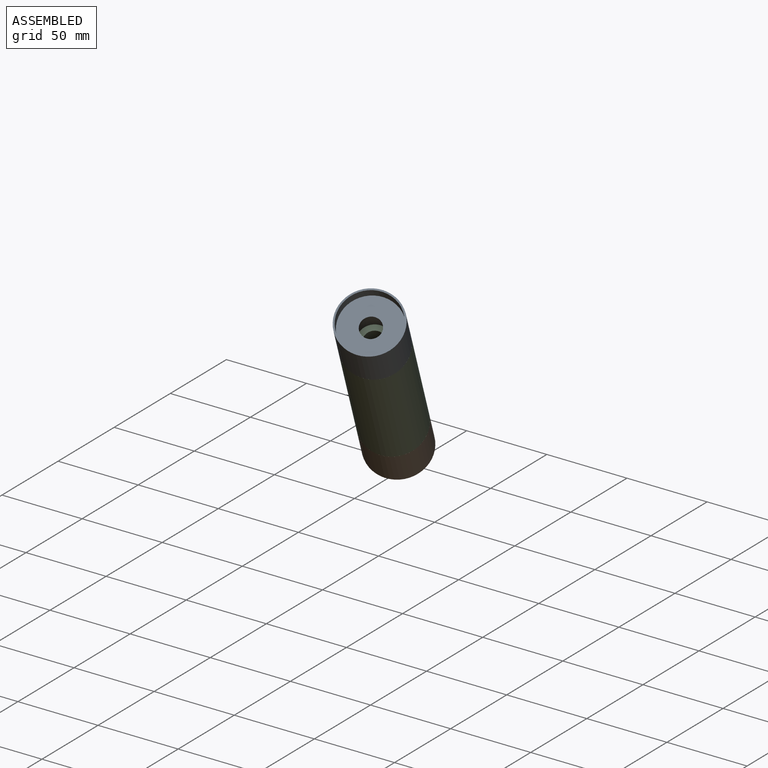
[diagram: assembled view]
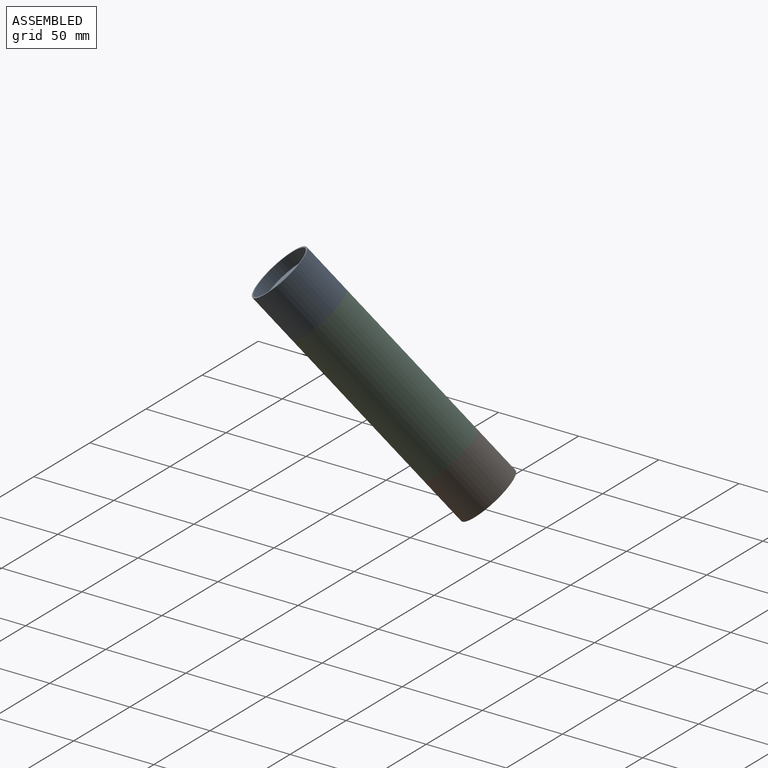
[diagram: assembled view, second angle]
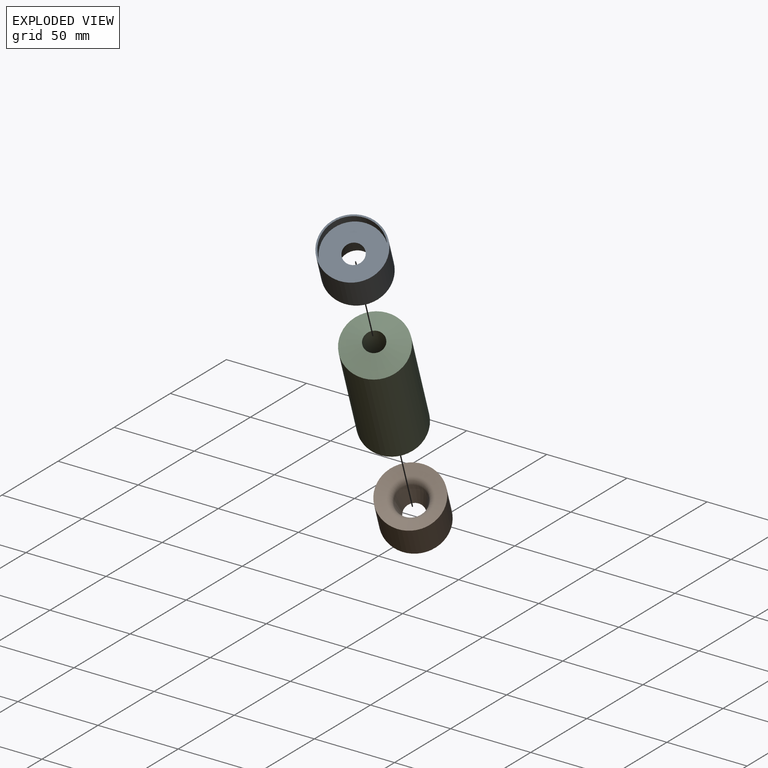
[diagram: exploded view]
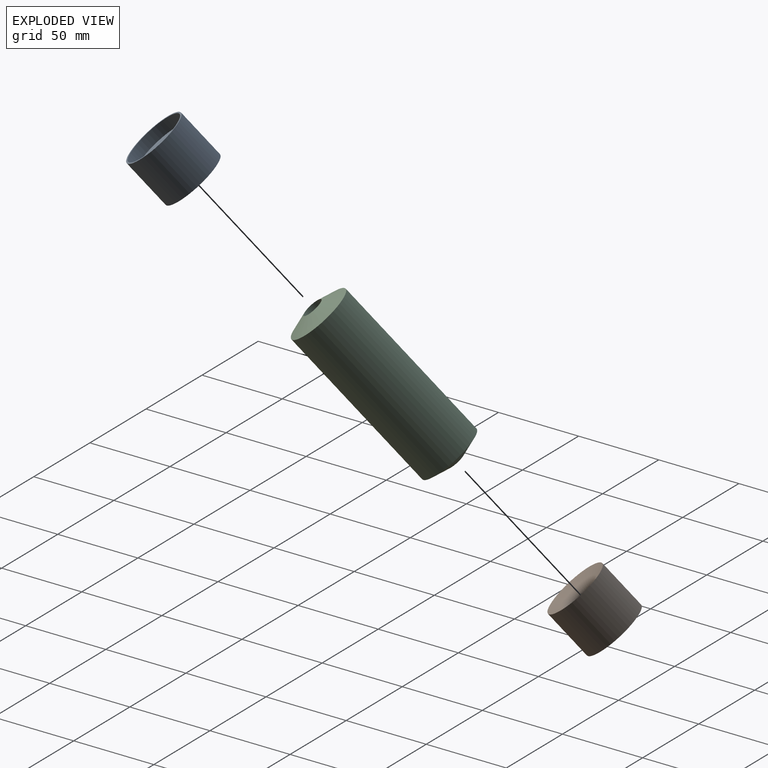
[diagram: exploded view, second angle]
ASSEMBLY  parts=3 mates=2
PART A: 7 faces, bbox 38x38x30 mm
  f0: cone r=6.25mm half-angle=10deg, axis (0,0,1), area 827.2mm2, adj f4,f6
  f1: plane 38x38mm, normal (0,0,-1), area 116.2mm2, adj f2,f5
  f2: cylinder r=19mm len=38mm, axis (0,0,-1), area 3581.4mm2, adj f1,f3
  f3: cone r=0mm half-angle=70deg, axis (0,0,1), area 691mm2, adj f2,f6
  f4: plane 36x36mm, normal (0,0,-1), area 895.2mm2, adj f0,f5
  f5: cylinder r=18mm len=36mm, axis (0,0,-1), area 791.7mm2, adj f1,f4
  f6: torus R=14.13mm, axis (0,0,1), area 344.6mm2, adj f0,f3
PART B: same geometry as A
PART C: 4 faces, bbox 38x38x110 mm
  f0: cylinder r=6.25mm len=110mm, axis (0,0,1), area 4319.7mm2, adj f1,f3
  f1: cone r=6.25mm half-angle=70deg, axis (0,0,1), area 1076.3mm2, adj f0,f2
  f2: cylinder r=19mm len=100.72mm, axis (0,0,1), area 12023.9mm2, adj f1,f3
  f3: cone r=6.25mm half-angle=70deg, axis (0,0,-1), area 1076.3mm2, adj f0,f2
PLACE A rot(axis=(-0.81,0.5,0.31),158.4deg) t=(238.65,165.5,216.77)mm
PLACE B rot(axis=(0.35,-0.21,0.91),121.8deg) t=(189.4,261.41,97.58)mm
PLACE C rot(axis=(-0.97,-0.23,0.09),139.1deg) t=(230.88,180.63,197.96)mm
MATE fastened B.f2 <-> C.f0  axis (-0.31,0.6,-0.74) through (198.59,243.51,119.82)mm
MATE fastened C.f0 <-> A.f2  axis (-0.31,0.6,-0.74) through (229.45,183.4,194.52)mm
